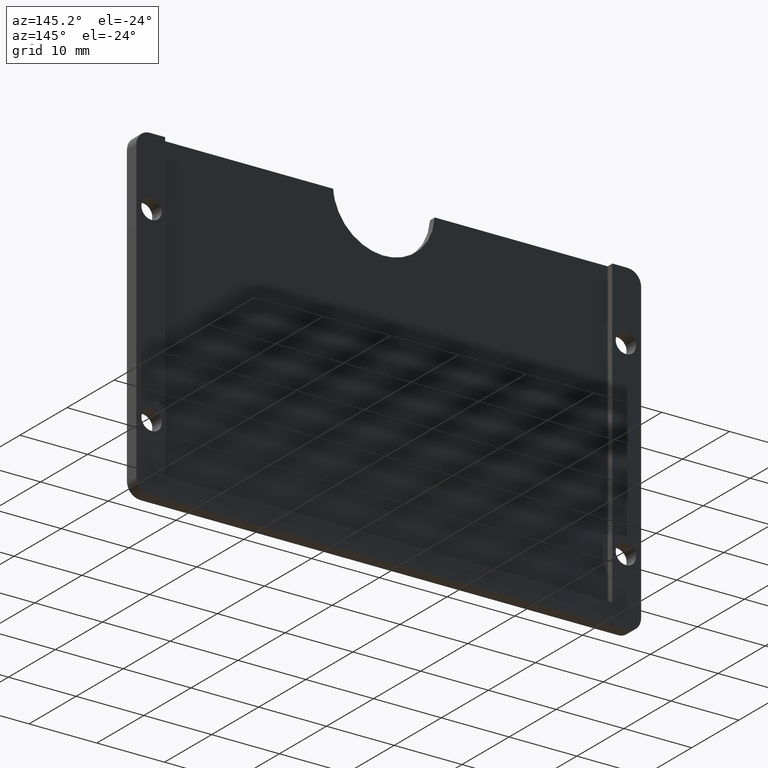
[diagram: clean part render]
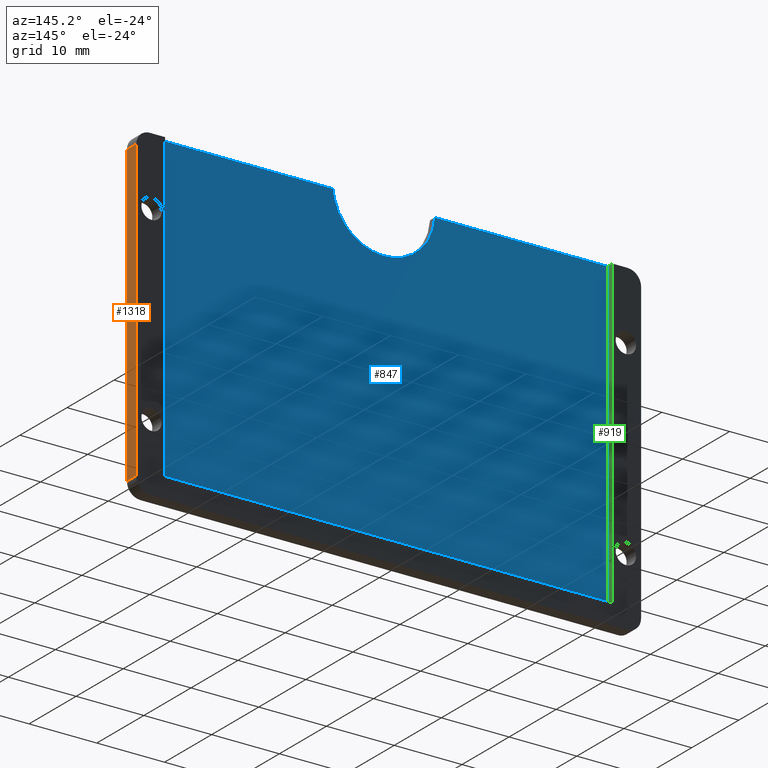
[diagram: same view with three faces highlighted in distinct colors, each labeled with its STEP entity id]
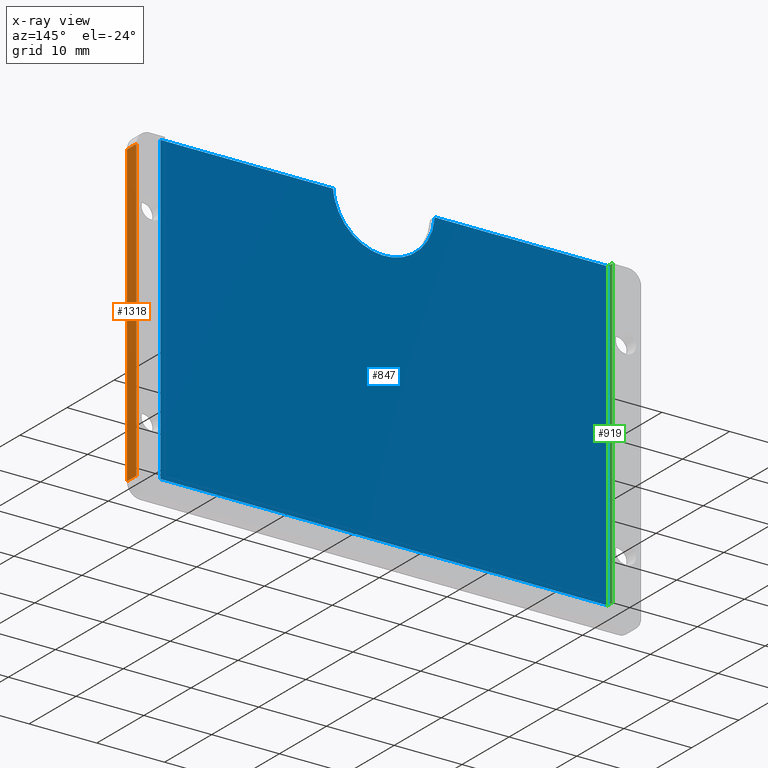
[diagram: x-ray of the same camera — body ghosted, the three highlighted faces saturated]
A machine part, auxiliary view with three faces highlighted in distinct colors.
The next image is the same camera in x-ray (body ghosted, the three faces saturated) — at least one of them is partly hidden behind the body in this view.
Their STEP definitions:

[orange] entity #1318 — the highlighted face is a freeform B-spline surface patch.
#978=CARTESIAN_POINT('',(37.250000000000000,0.0,2.0));
#979=VERTEX_POINT('',#978);
#993=CARTESIAN_POINT('',(37.250000000000000,0.0,46.0));
#994=VERTEX_POINT('',#993);
#995=CARTESIAN_POINT('',(37.250000000000000,0.0,46.0));
#996=CARTESIAN_POINT('',(37.250000000000000,0.0,2.0));
#997=QUASI_UNIFORM_CURVE('',1,(#995,#996),.UNSPECIFIED.,.F.,.U.);
#998=EDGE_CURVE('',#994,#979,#997,.T.);
#1086=CARTESIAN_POINT('',(37.250000000000000,2.0,46.0));
#1087=VERTEX_POINT('',#1086);
#1101=CARTESIAN_POINT('',(37.250000000000000,2.0,2.0));
#1102=VERTEX_POINT('',#1101);
#1103=CARTESIAN_POINT('',(37.250000000000000,2.0,46.0));
#1104=CARTESIAN_POINT('',(37.250000000000000,2.0,2.0));
#1105=QUASI_UNIFORM_CURVE('',1,(#1103,#1104),.UNSPECIFIED.,.F.,.U.);
#1106=EDGE_CURVE('',#1087,#1102,#1105,.T.);
#1295=CARTESIAN_POINT('',(37.250000000000000,2.0,2.0));
#1296=CARTESIAN_POINT('',(37.250000000000000,0.0,2.0));
#1297=QUASI_UNIFORM_CURVE('',1,(#1295,#1296),.UNSPECIFIED.,.F.,.U.);
#1298=EDGE_CURVE('',#1102,#979,#1297,.T.);
#1303=CARTESIAN_POINT('',(37.250000000000000,-0.099899996123612,-0.197799914719461));
#1304=CARTESIAN_POINT('',(37.250000000000000,-0.099899996123612,48.197801094891432));
#1305=CARTESIAN_POINT('',(37.250000000000000,2.099900049767792,-0.197799914719461));
#1306=CARTESIAN_POINT('',(37.250000000000000,2.099900049767792,48.197801094891432));
#1307=B_SPLINE_SURFACE_WITH_KNOTS('',1,1,((#1303,#1305),(#1304,#1306)),.UNSPECIFIED.,.F.,.F.,.U.,(2,2),(2,2),(0.0,48.395601009610893),(0.0,2.199800045891404),.UNSPECIFIED.);
#1308=ORIENTED_EDGE('',*,*,#998,.T.);
#1309=ORIENTED_EDGE('',*,*,#1298,.F.);
#1310=ORIENTED_EDGE('',*,*,#1106,.F.);
#1311=CARTESIAN_POINT('',(37.250000000000000,2.0,46.0));
#1312=CARTESIAN_POINT('',(37.250000000000000,0.0,46.0));
#1313=QUASI_UNIFORM_CURVE('',1,(#1311,#1312),.UNSPECIFIED.,.F.,.U.);
#1314=EDGE_CURVE('',#1087,#994,#1313,.T.);
#1315=ORIENTED_EDGE('',*,*,#1314,.T.);
#1316=EDGE_LOOP('',(#1308,#1309,#1310,#1315));
#1317=FACE_OUTER_BOUND('',#1316,.T.);
#1318=ADVANCED_FACE('',(#1317),#1307,.F.);

[blue] entity #847 — the highlighted face is a freeform B-spline surface patch.
#788=CARTESIAN_POINT('',(-36.296699872079202,1.0,50.247749912781281));
#789=CARTESIAN_POINT('',(36.296701642337140,1.0,50.247749912781281));
#790=CARTESIAN_POINT('',(-36.296699872079202,1.0,0.752248880224672));
#791=CARTESIAN_POINT('',(36.296701642337140,1.0,0.752248880224672));
#792=B_SPLINE_SURFACE_WITH_KNOTS('',1,1,((#788,#790),(#789,#791)),.UNSPECIFIED.,.F.,.F.,.U.,(2,2),(2,2),(0.0,72.593401514416342),(0.0,49.495501032556611),.UNSPECIFIED.);
#793=CARTESIAN_POINT('',(-33.0,1.0,3.0));
#794=VERTEX_POINT('',#793);
#795=CARTESIAN_POINT('',(-33.0,1.0,48.0));
#796=VERTEX_POINT('',#795);
#797=CARTESIAN_POINT('',(-33.0,1.0,3.0));
#798=CARTESIAN_POINT('',(-33.0,1.0,48.0));
#799=QUASI_UNIFORM_CURVE('',1,(#797,#798),.UNSPECIFIED.,.F.,.U.);
#800=EDGE_CURVE('',#794,#796,#799,.T.);
#801=ORIENTED_EDGE('',*,*,#800,.T.);
#802=CARTESIAN_POINT('',(-7.499999999999900,1.0,48.0));
#803=VERTEX_POINT('',#802);
#804=CARTESIAN_POINT('',(-33.0,1.0,48.0));
#805=CARTESIAN_POINT('',(-7.499999999999900,1.0,48.0));
#806=QUASI_UNIFORM_CURVE('',1,(#804,#805),.UNSPECIFIED.,.F.,.U.);
#807=EDGE_CURVE('',#796,#803,#806,.T.);
#808=ORIENTED_EDGE('',*,*,#807,.T.);
#809=CARTESIAN_POINT('',(7.499999857678900,1.0,47.999999869832202));
#810=VERTEX_POINT('',#809);
#811=CARTESIAN_POINT('',(-7.499999999999900,1.0,48.0));
#812=CARTESIAN_POINT('',(-7.016666671166889,1.0,41.000000065175691));
#813=CARTESIAN_POINT('',(-0.000000069831099,1.0,40.999999999999993));
#814=CARTESIAN_POINT('',(7.016666531504689,1.0,40.999999934824295));
#815=CARTESIAN_POINT('',(7.499999857678890,1.0,47.999999869832202));
#823=(BOUNDED_CURVE()B_SPLINE_CURVE(2,(#811,#812,#813,#814,#815),.UNSPECIFIED.,.F.,.U.)B_SPLINE_CURVE_WITH_KNOTS((3,2,3),(0.0,0.500000000000000,1.0),.UNSPECIFIED.)CURVE()GEOMETRIC_REPRESENTATION_ITEM()RATIONAL_B_SPLINE_CURVE((1.0,0.731055264944358,1.0,0.731055264944358,1.0))REPRESENTATION_ITEM(''));
#824=EDGE_CURVE('',#803,#810,#823,.T.);
#825=ORIENTED_EDGE('',*,*,#824,.T.);
#826=CARTESIAN_POINT('',(33.0,1.0,48.0));
#827=VERTEX_POINT('',#826);
#828=CARTESIAN_POINT('',(7.499999857678900,1.0,47.999999869832202));
#829=CARTESIAN_POINT('',(33.0,1.0,48.0));
#830=QUASI_UNIFORM_CURVE('',1,(#828,#829),.UNSPECIFIED.,.F.,.U.);
#831=EDGE_CURVE('',#810,#827,#830,.T.);
#832=ORIENTED_EDGE('',*,*,#831,.T.);
#833=CARTESIAN_POINT('',(33.0,1.0,3.0));
#834=VERTEX_POINT('',#833);
#835=CARTESIAN_POINT('',(33.0,1.0,48.0));
#836=CARTESIAN_POINT('',(33.0,1.0,3.0));
#837=QUASI_UNIFORM_CURVE('',1,(#835,#836),.UNSPECIFIED.,.F.,.U.);
#838=EDGE_CURVE('',#827,#834,#837,.T.);
#839=ORIENTED_EDGE('',*,*,#838,.T.);
#840=CARTESIAN_POINT('',(33.0,1.0,3.0));
#841=CARTESIAN_POINT('',(-33.0,1.0,3.0));
#842=QUASI_UNIFORM_CURVE('',1,(#840,#841),.UNSPECIFIED.,.F.,.U.);
#843=EDGE_CURVE('',#834,#794,#842,.T.);
#844=ORIENTED_EDGE('',*,*,#843,.T.);
#845=EDGE_LOOP('',(#801,#808,#825,#832,#839,#844));
#846=FACE_OUTER_BOUND('',#845,.T.);
#847=ADVANCED_FACE('',(#846),#792,.T.);

[green] entity #919 — the highlighted face is a freeform B-spline surface patch.
#793=CARTESIAN_POINT('',(-33.0,1.0,3.0));
#794=VERTEX_POINT('',#793);
#795=CARTESIAN_POINT('',(-33.0,1.0,48.0));
#796=VERTEX_POINT('',#795);
#797=CARTESIAN_POINT('',(-33.0,1.0,3.0));
#798=CARTESIAN_POINT('',(-33.0,1.0,48.0));
#799=QUASI_UNIFORM_CURVE('',1,(#797,#798),.UNSPECIFIED.,.F.,.U.);
#800=EDGE_CURVE('',#794,#796,#799,.T.);
#855=CARTESIAN_POINT('',(-33.0,2.0,3.0));
#856=VERTEX_POINT('',#855);
#862=CARTESIAN_POINT('',(-33.0,1.0,3.0));
#863=CARTESIAN_POINT('',(-33.0,2.0,3.0));
#864=QUASI_UNIFORM_CURVE('',1,(#862,#863),.UNSPECIFIED.,.F.,.U.);
#865=EDGE_CURVE('',#794,#856,#864,.T.);
#898=CARTESIAN_POINT('',(-33.0,0.950050001938194,0.752250087218731));
#899=CARTESIAN_POINT('',(-33.0,0.950050001938194,50.247751119775330));
#900=CARTESIAN_POINT('',(-33.0,2.049950024883896,0.752250087218731));
#901=CARTESIAN_POINT('',(-33.0,2.049950024883896,50.247751119775330));
#902=B_SPLINE_SURFACE_WITH_KNOTS('',1,1,((#898,#900),(#899,#901)),.UNSPECIFIED.,.F.,.F.,.U.,(2,2),(2,2),(0.0,49.495501032556596),(0.041708334948495,0.958291687403247),.UNSPECIFIED.);
#903=CARTESIAN_POINT('',(-33.0,2.0,48.0));
#904=VERTEX_POINT('',#903);
#905=CARTESIAN_POINT('',(-33.0,2.0,3.0));
#906=CARTESIAN_POINT('',(-33.0,2.0,48.0));
#907=QUASI_UNIFORM_CURVE('',1,(#905,#906),.UNSPECIFIED.,.F.,.U.);
#908=EDGE_CURVE('',#856,#904,#907,.T.);
#909=ORIENTED_EDGE('',*,*,#908,.T.);
#910=CARTESIAN_POINT('',(-33.0,1.0,48.0));
#911=CARTESIAN_POINT('',(-33.0,2.0,48.0));
#912=QUASI_UNIFORM_CURVE('',1,(#910,#911),.UNSPECIFIED.,.F.,.U.);
#913=EDGE_CURVE('',#796,#904,#912,.T.);
#914=ORIENTED_EDGE('',*,*,#913,.F.);
#915=ORIENTED_EDGE('',*,*,#800,.F.);
#916=ORIENTED_EDGE('',*,*,#865,.T.);
#917=EDGE_LOOP('',(#909,#914,#915,#916));
#918=FACE_OUTER_BOUND('',#917,.T.);
#919=ADVANCED_FACE('',(#918),#902,.F.);